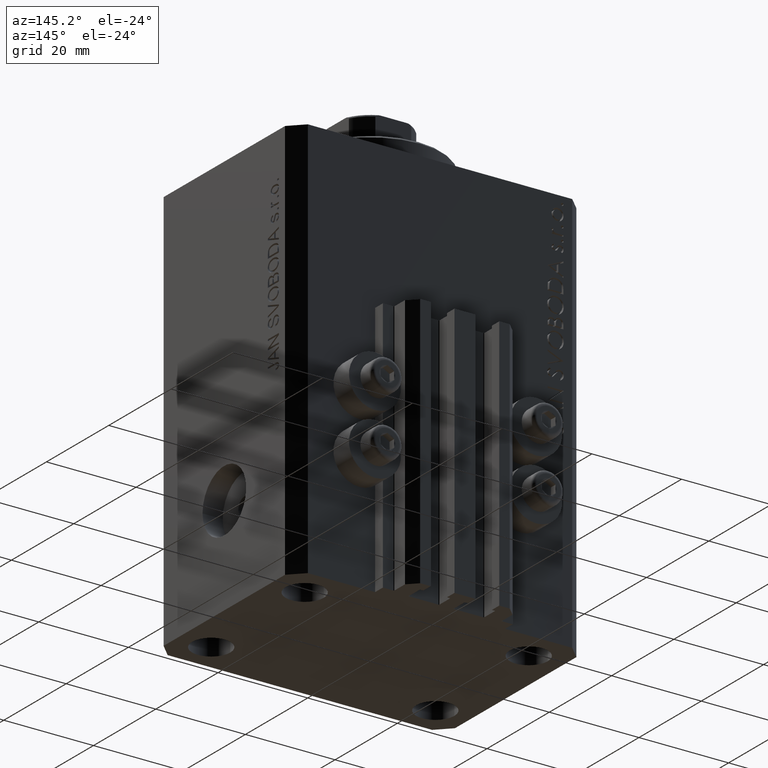
[diagram: clean part render]
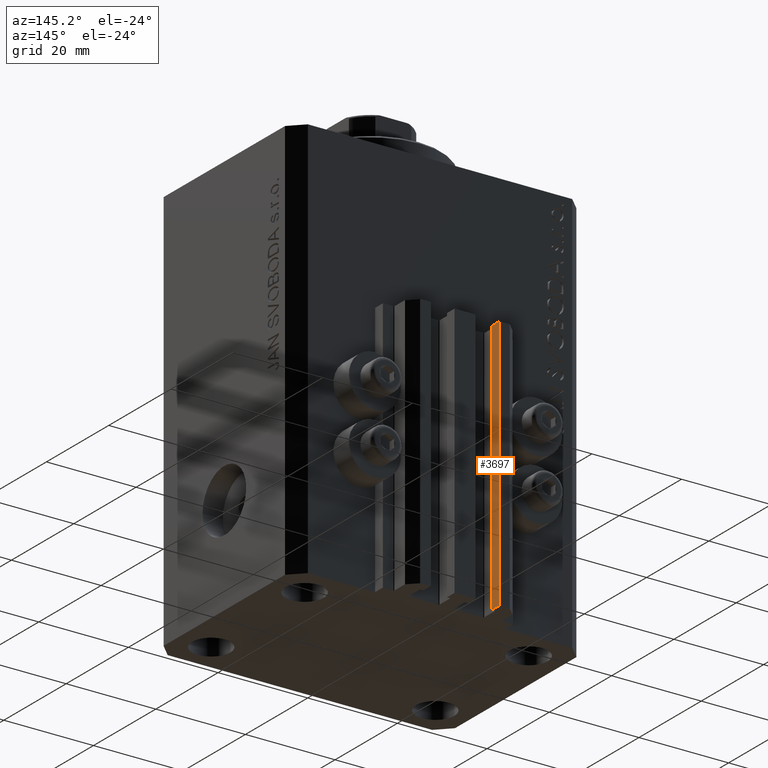
[diagram: same view with one face highlighted and labeled with its STEP entity id]
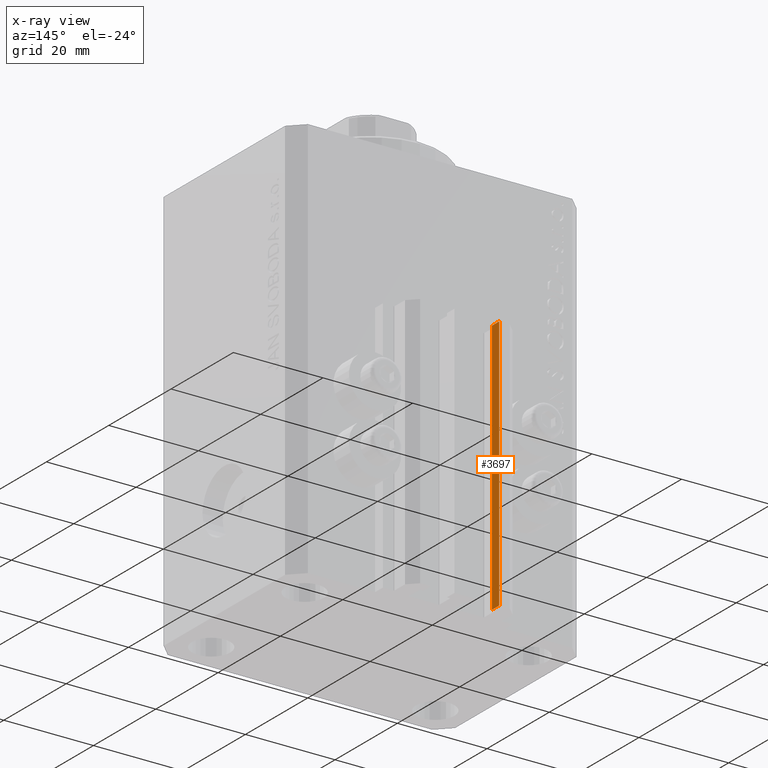
[diagram: x-ray of the same camera — body ghosted, the highlighted face saturated]
A machine part, auxiliary view. The second image highlights one B-rep face of the part: STEP entity #3697.
The next image is the same camera in x-ray: the body ghosted, the highlighted face saturated — about 0% of this face is hidden behind the body in this view.
In plain terms, the highlighted planar face has unit normal (1, 0, 0).
Its self-contained STEP definition (entity closure, byte-faithful):
#2178 = CARTESIAN_POINT ( 'NONE',  ( -7.650000000000000355, 30.49999999999948486, -90.00000000000000000 ) ) ;
#2940 = CARTESIAN_POINT ( 'NONE',  ( -7.650000000000000355, 28.09999999999948628, -90.00000000000000000 ) ) ;
#3697 = ADVANCED_FACE ( 'NONE', ( #42546 ), #35625, .T. ) ;
#3955 = DIRECTION ( 'NONE',  ( 0.000000000000000000, 0.000000000000000000, 1.000000000000000000 ) ) ;
#4408 = VECTOR ( 'NONE', #3955, 1000.000000000000000 ) ;
#5147 = ORIENTED_EDGE ( 'NONE', *, *, #12322, .T. ) ;
#8406 = EDGE_CURVE ( 'NONE', #8716, #18385, #32117, .T. ) ;
#8716 = VERTEX_POINT ( 'NONE', #39465 ) ;
#9211 = CARTESIAN_POINT ( 'NONE',  ( -7.650000000000000355, 28.09999999999948628, -33.00000000000000000 ) ) ;
#11100 = CARTESIAN_POINT ( 'NONE',  ( -7.650000000000000355, 30.49999999999948486, -33.00000000000000000 ) ) ;
#12322 = EDGE_CURVE ( 'NONE', #13093, #41213, #30778, .T. ) ;
#12590 = CARTESIAN_POINT ( 'NONE',  ( -7.650000000000000355, 28.09999999999948628, -33.00000000000000000 ) ) ;
#13093 = VERTEX_POINT ( 'NONE', #2178 ) ;
#13840 = ORIENTED_EDGE ( 'NONE', *, *, #24961, .F. ) ;
#14447 = CARTESIAN_POINT ( 'NONE',  ( -7.650000000000000355, 28.09999999999948628, -90.00000000000000000 ) ) ;
#18198 = DIRECTION ( 'NONE',  ( 0.000000000000000000, 1.000000000000000000, 0.000000000000000000 ) ) ;
#18385 = VERTEX_POINT ( 'NONE', #9211 ) ;
#19587 = VECTOR ( 'NONE', #18198, 1000.000000000000000 ) ;
#24419 = DIRECTION ( 'NONE',  ( 1.000000000000000000, 0.000000000000000000, 0.000000000000000000 ) ) ;
#24834 = AXIS2_PLACEMENT_3D ( 'NONE', #2940, #24419, #32054 ) ;
#24885 = LINE ( 'NONE', #43503, #19587 ) ;
#24961 = EDGE_CURVE ( 'NONE', #18385, #41213, #46003, .T. ) ;
#26957 = CARTESIAN_POINT ( 'NONE',  ( -7.650000000000000355, 30.49999999999948486, -90.00000000000000000 ) ) ;
#30778 = LINE ( 'NONE', #26957, #45537 ) ;
#30970 = DIRECTION ( 'NONE',  ( 0.000000000000000000, 1.000000000000000000, 0.000000000000000000 ) ) ;
#32054 = DIRECTION ( 'NONE',  ( 0.000000000000000000, 0.000000000000000000, -1.000000000000000000 ) ) ;
#32117 = LINE ( 'NONE', #14447, #4408 ) ;
#32180 = ORIENTED_EDGE ( 'NONE', *, *, #38140, .T. ) ;
#35625 = PLANE ( 'NONE',  #24834 ) ;
#38140 = EDGE_CURVE ( 'NONE', #8716, #13093, #24885, .T. ) ;
#39465 = CARTESIAN_POINT ( 'NONE',  ( -7.650000000000000355, 28.09999999999948628, -90.00000000000000000 ) ) ;
#40823 = EDGE_LOOP ( 'NONE', ( #13840, #47183, #32180, #5147 ) ) ;
#41213 = VERTEX_POINT ( 'NONE', #11100 ) ;
#42546 = FACE_OUTER_BOUND ( 'NONE', #40823, .T. ) ;
#42920 = VECTOR ( 'NONE', #30970, 1000.000000000000000 ) ;
#43503 = CARTESIAN_POINT ( 'NONE',  ( -7.650000000000000355, 28.09999999999948628, -90.00000000000000000 ) ) ;
#45537 = VECTOR ( 'NONE', #45812, 1000.000000000000000 ) ;
#45812 = DIRECTION ( 'NONE',  ( 0.000000000000000000, 0.000000000000000000, 1.000000000000000000 ) ) ;
#46003 = LINE ( 'NONE', #12590, #42920 ) ;
#47183 = ORIENTED_EDGE ( 'NONE', *, *, #8406, .F. ) ;